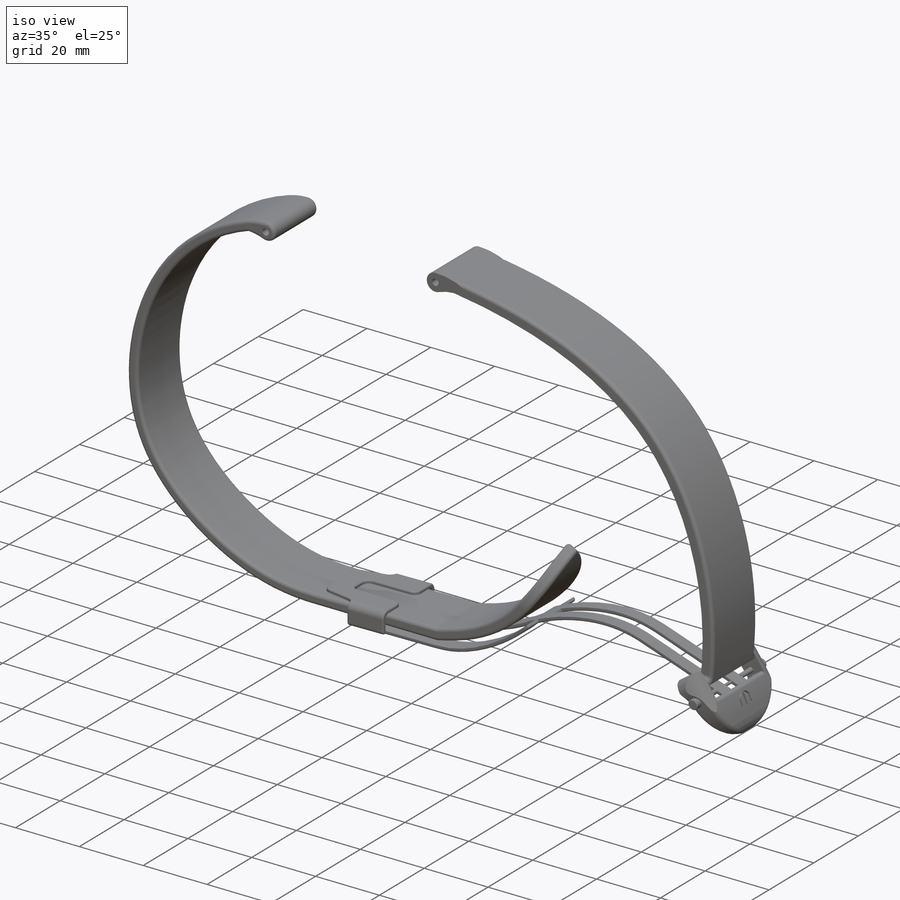
[diagram: iso view]
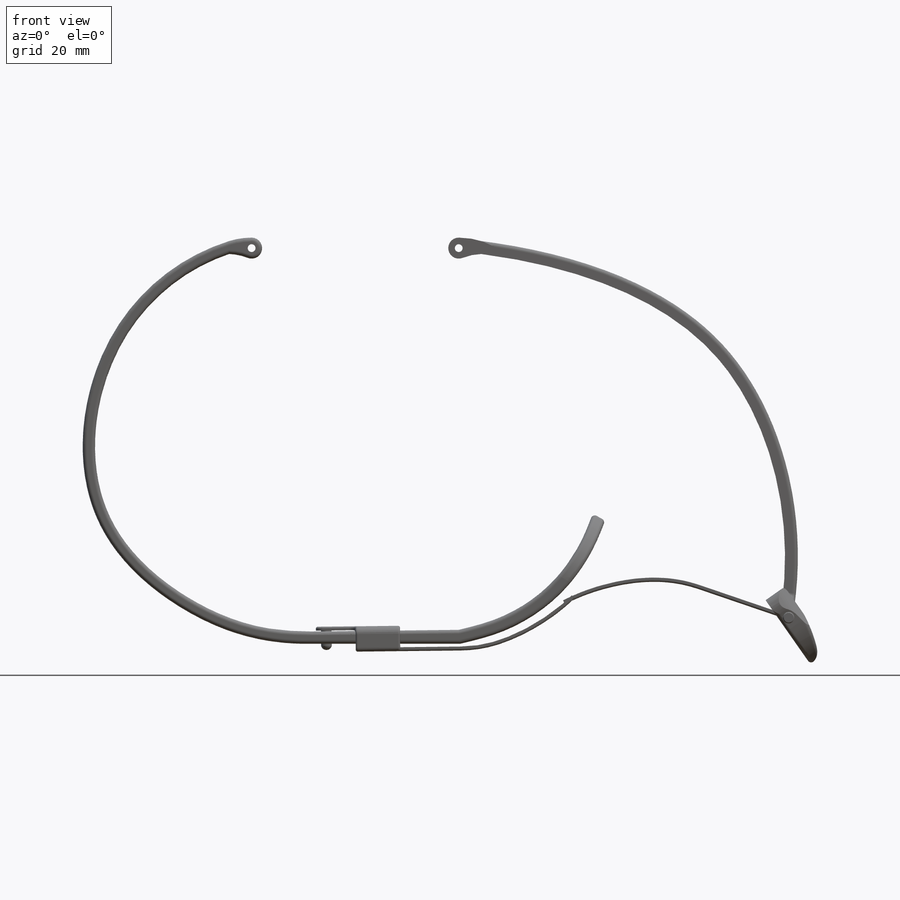
[diagram: front view]
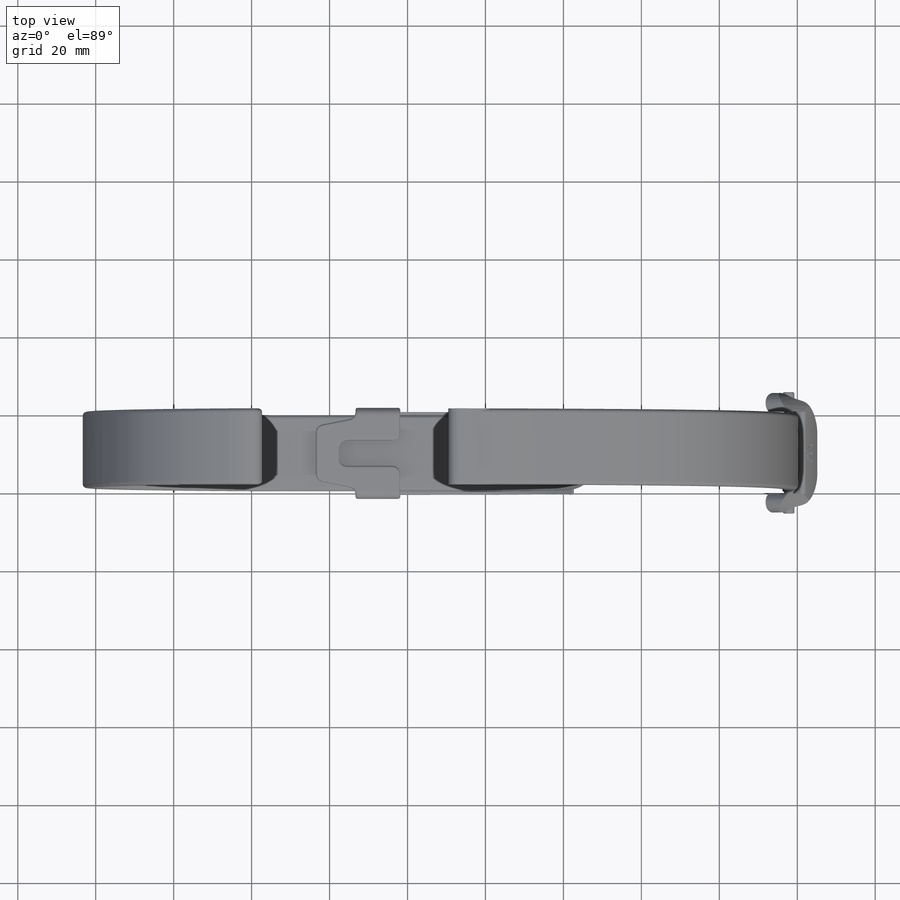
[diagram: top view]
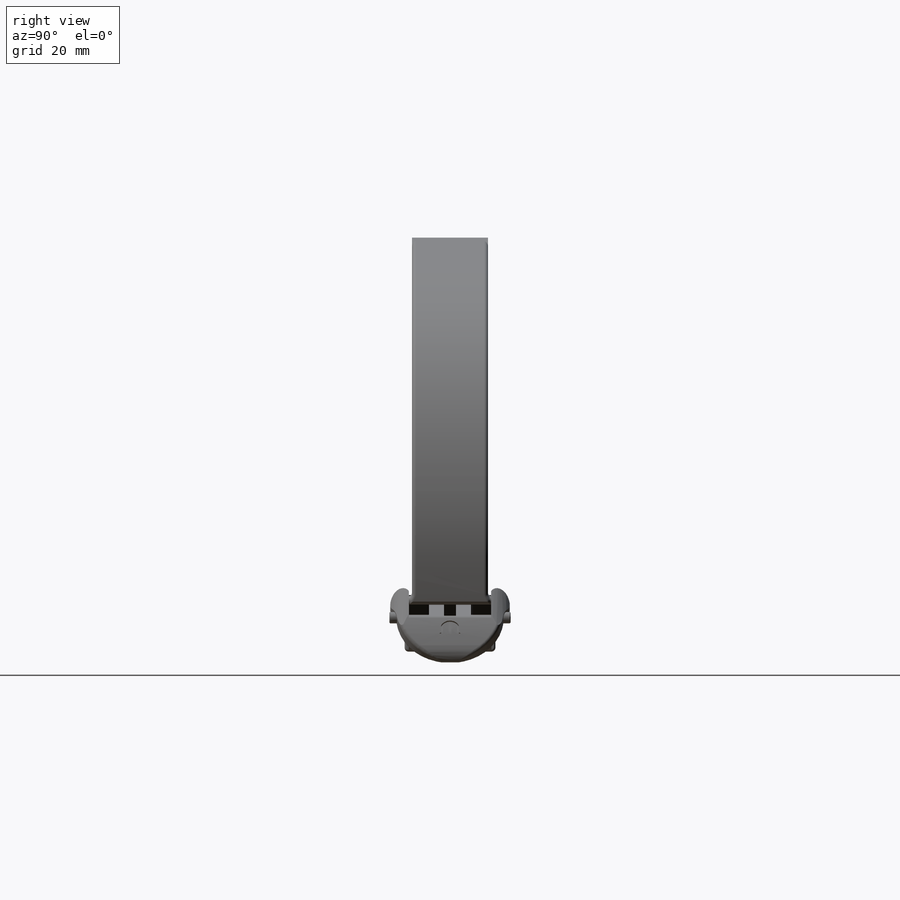
[diagram: right view]
SOLIDWORKS PART (.sldprt)
format: sldprt  version: not decoded by parser v0  size: 1,653,760 bytes
history: native  units: mm
features: sketch x34, fillet x17, plane x16, extrude x15, cut_extrude x8, sweep x4, mirror x4, material x1, delete_body x1, cut_revolve x1, chamfer x1, dome x1 (+8 scaffold rows collapsed)
feature tree (111):
  scaffold x8  (default folders/planes/origin — collapsed)
  material  "Materiał <nieokreślony>"
  plane  "Płaszczyzna przednia"
  plane  "Płaszczyzna górna"
  plane  "Płaszczyzna prawa"
  sketch  "Szkic1"  dims[D1=2.0mm]
  extrude  "Dodanie-wyciągnięcie1"  Depth=19.5mm
  sketch  "Szkic2"  dims[D1=0.0mm]
  plane  "Płaszczyzna1"
  sketch  "Szkic3"
  sweep  "Wyciągnięcie po ścieżce1"
  sketch  "Szkic4"  dims[D1=53.14mm]
  extrude  "Dodanie-wyciągnięcie2"  Depth=19.5mm
  sketch  "Szkic5"  dims[D1=0.0mm]
  sketch  "Szkic6"
  sweep  "Wyciągnięcie po ścieżce2"
  sketch  "Szkic 3D2"
  plane  "Płaszczyzna2"
  sketch  "Szkic7"  dims[D1=1.0mm]
  cut_extrude  "Wytnij-wyciągnięcie1"  [1 undecoded]
  delete_body  "Obiekt-Usuń1"
  sketch  "Szkic8"  dims[D1=2.0mm]
  extrude  "Dodanie-wyciągnięcie3"  Depth=1mm
  sketch  "Szkic9"
  extrude  "Dodanie-wyciągnięcie4"  Depth=5.5mm
  plane  "Płaszczyzna3"
  mirror  "Lustro2"
  fillet  "Zaokrąglenie1"  Radius=2mm
  fillet  "Zaokrąglenie2"  Radius=1.5mm
  plane  "Płaszczyzna4"
  sketch  "Szkic10"
  plane  "Płaszczyzna5"
  sketch  "Szkic11"
  sweep  "Wyciągnięcie po ścieżce3"
  mirror  "Lustro3"
  fillet  "Zaokrąglenie3"  Radius=1mm
  fillet  "Zaokrąglenie4"  Radius=0.5mm
  plane  "Płaszczyzna6"
  sketch  "Szkic12"  dims[D1=0.8mm]
  extrude  "Dodanie-wyciągnięcie5"  Depth=6mm
  plane  "Płaszczyzna7"
  sketch  "Szkic13"
  cut_extrude  "Wytnij-wyciągnięcie2"  [1 undecoded]
  plane  "Płaszczyzna8"
  sketch  "Szkic14"
  cut_extrude  "Wytnij-wyciągnięcie3"  [1 undecoded]
  plane  "Płaszczyzna9"
  sketch  "Szkic16"
  sketch  "Szkic15"
  cut_revolve  "Wycięcie-obrót1"  Angle=115deg
  sketch  "Szkic17"
  sketch  "Szkic18"
  cut_extrude  "Wytnij-wyciągnięcie4"  [1 undecoded]
  plane  "Płaszczyzna10"
  sketch  "Szkic19"
  sweep  "Wyciągnięcie po ścieżce5"
  sketch  "Szkic22"  dims[D1=0.2mm]
  cut_extrude  "Wytnij-wyciągnięcie8"  Depth=1.5mm
  mirror  "Lustro4"
  sketch  "Szkic24"
  cut_extrude  "Wytnij-wyciągnięcie9"  [1 undecoded]
  sketch  "Szkic25"  dims[D1=0.05mm]
  extrude  "Dodanie-wyciągnięcie6"  [1 undecoded]
  sketch  "Szkic26"  dims[D1=0.1mm]
  extrude  "Dodanie-wyciągnięcie7"  Depth=0.2mm
  mirror  "Lustro5"
  sketch  "Szkic27"
  cut_extrude  "Wytnij-wyciągnięcie10"  [1 undecoded]
  sketch  "Szkic28"
  extrude  "Dodanie-wyciągnięcie8"  [1 undecoded]
  sketch  "Szkic29"
  extrude  "Dodanie-wyciągnięcie9"  [1 undecoded]
  plane  "Płaszczyzna11"  Offset=5mm
  sketch  "Szkic30"
  extrude  "Dodanie-wyciągnięcie10"  [1 undecoded]
  sketch  "Szkic31"
  extrude  "Dodanie-wyciągnięcie11"  [1 undecoded]
  sketch  "Szkic32"
  extrude  "Dodanie-wyciągnięcie12"  [1 undecoded]
  plane  "Płaszczyzna12"  Offset=5mm
  sketch  "Szkic33"
  extrude  "Dodanie-wyciągnięcie13"  [1 undecoded]
  chamfer  "Sfazowanie1"  Distance=0.2mm Angle=45deg
  sketch  "Szkic34"
  extrude  "Dodanie-wyciągnięcie14"  [1 undecoded]
  sketch  "Szkic35"
  extrude  "Dodanie-wyciągnięcie15"  Depth=4mm
  dome  "Kopuła1"
  plane  "Płaszczyzna13"
  sketch  "Szkic36"
  cut_extrude  "Wytnij-wyciągnięcie11"  [1 undecoded]
  fillet  "Zaokrąglenie6"  Radius=1mm
  fillet  "Zaokrąglenie7"  Radius=1mm
  fillet  "Zaokrąglenie8"  Radius=1mm
  fillet  "Zaokrąglenie9"  Radius=1mm
  fillet  "Zaokrąglenie10"  Radius=1mm
  fillet  "Zaokrąglenie11"  Radius=1mm
  fillet  "Zaokrąglenie13"  Radius=1mm
  fillet  "Zaokrąglenie14"  Radius=1mm
  fillet  "Zaokrąglenie17"  Radius=1mm
  fillet  "Zaokrąglenie18"  Radius=1mm
  fillet  "Zaokrąglenie19"  Radius=1mm
  fillet  "Zaokrąglenie20"  Radius=0.5mm
  fillet  "Zaokrąglenie21"  Radius=0.5mm
decode coverage: 37 of 86 modeling features carry decoded parameters
note: 15 parameter values undecoded
summary: no parameter record found for 15 features; profile_refs inferred from adjacent sketches, not decoded
note: suppression state not decoded; provenance and decode notes live in map.json
